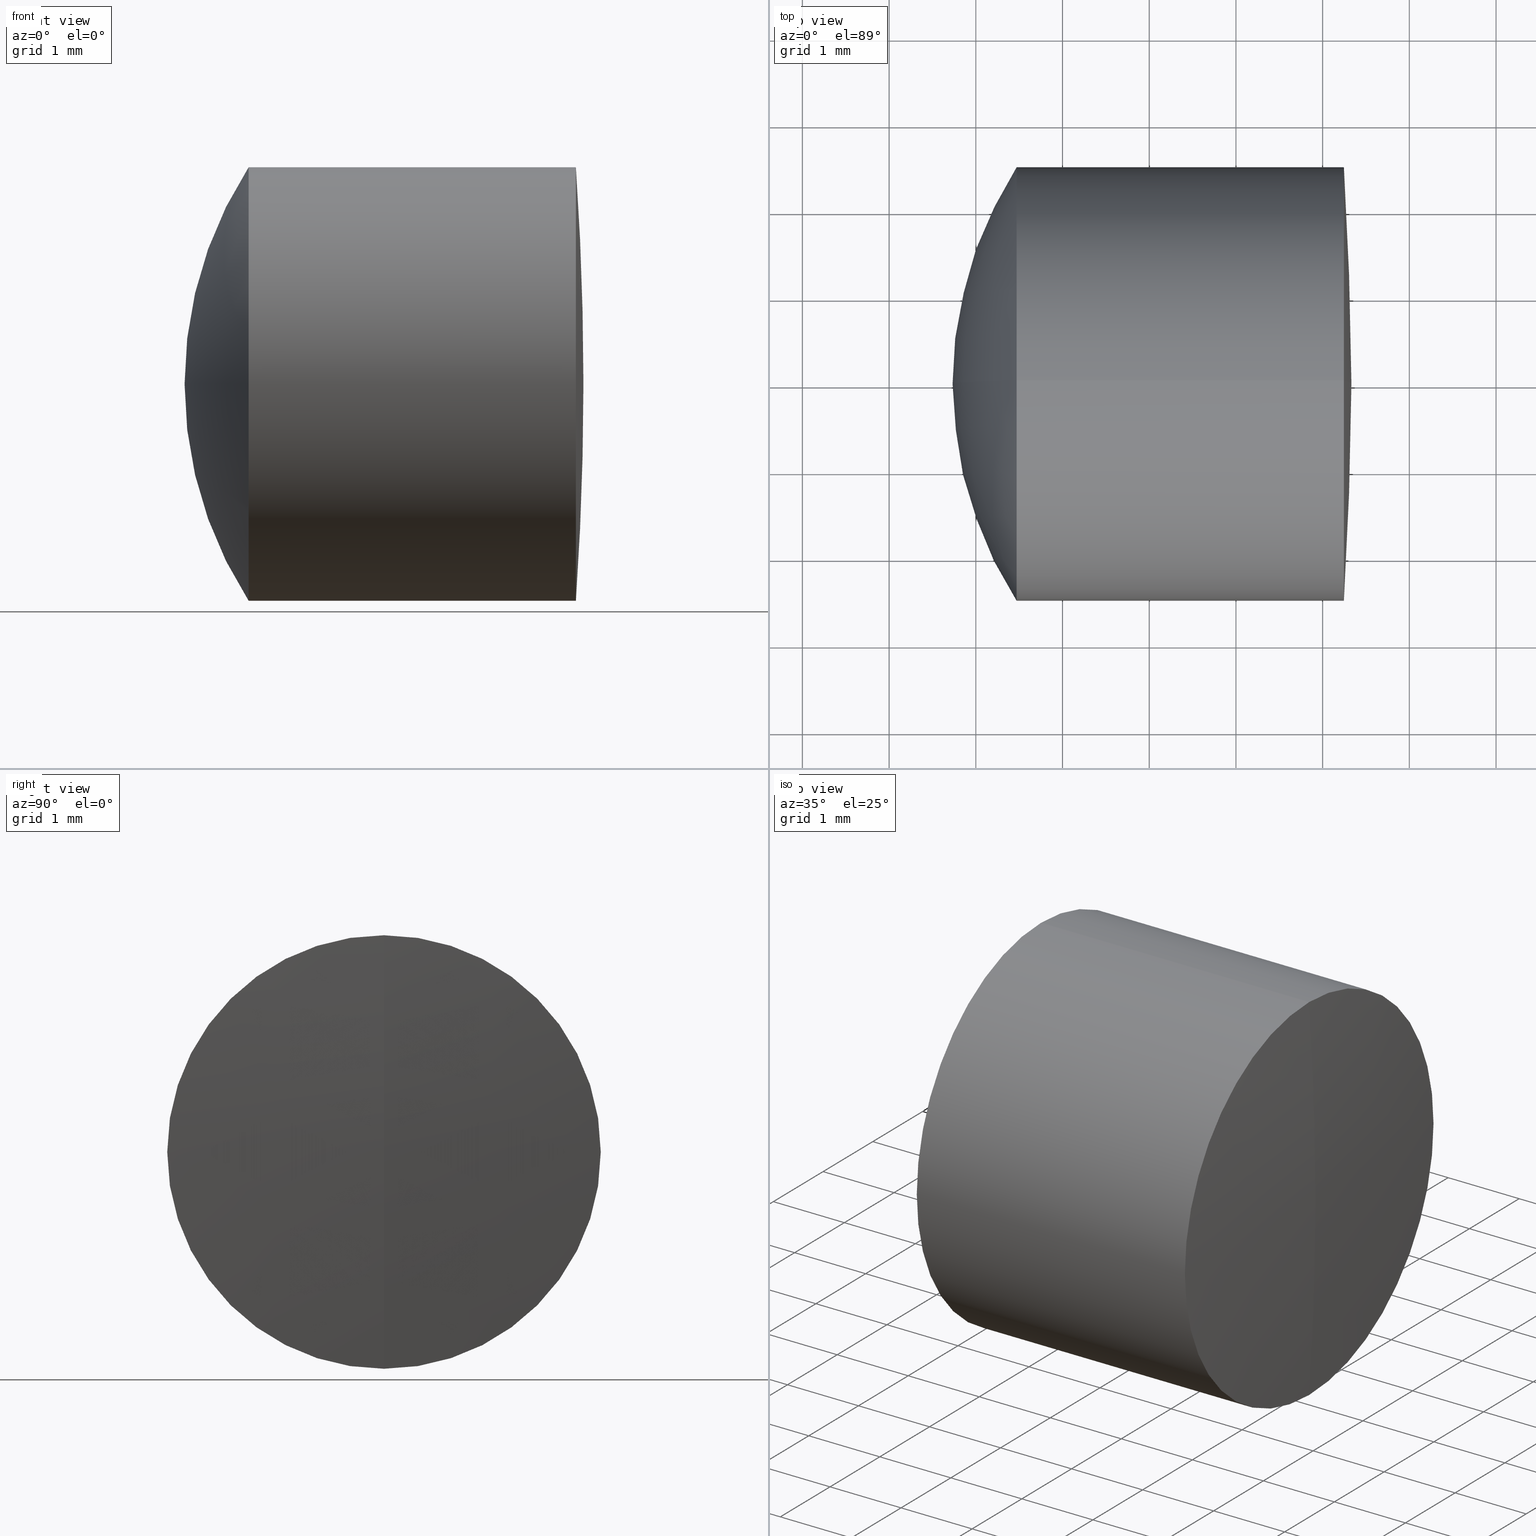
[diagram: canonical four-view strip — front | top / right | iso, engineering-drawing reading convention]
A machine part, canonical four-view strip (front | top / right | iso — engineering-drawing reading convention). The complete STEP part file that produces these views, byte-faithful:
ISO-10303-21;
HEADER;
FILE_DESCRIPTION (( 'STEP AP214' ),
    '1' );
FILE_NAME ('145100.STEP',
    '2019-05-28T05:48:34',
    ( 'user' ),
    ( '΢���й�' ),
    'SwSTEP 2.0',
    'SolidWorks 2016',
    '' );
FILE_SCHEMA (( 'AUTOMOTIVE_DESIGN' ));
ENDSEC;

DATA;
#1 = ORIENTED_EDGE ( 'NONE', *, *, #313, .T. ) ;
#2 = DIRECTION ( 'NONE',  ( 0.0000000000000000000, -1.000000000000000000, 0.0000000000000000000 ) ) ;
#3 = CARTESIAN_POINT ( 'NONE',  ( 261.3321490580823900, 0.0000000000000000000, 2.204364238465235800E-015 ) ) ;
#4 = DIRECTION ( 'NONE',  ( 0.0000000000000000000, 0.0000000000000000000, 1.000000000000000000 ) ) ;
#5 = DIRECTION ( 'NONE',  ( 0.0000000000000000000, 1.000000000000000000, 0.0000000000000000000 ) ) ;
#6 = MECHANICAL_DESIGN_GEOMETRIC_PRESENTATION_REPRESENTATION (  '', ( #104 ), #230 ) ;
#7 = DIRECTION ( 'NONE',  ( -1.000000000000000000, -0.0000000000000000000, -0.0000000000000000000 ) ) ;
#8 = SPHERICAL_SURFACE ( 'NONE', #24, 3.900000000000011000 ) ;
#9 = DIRECTION ( 'NONE',  ( 0.0000000000000000000, 0.0000000000000000000, 1.000000000000000000 ) ) ;
#10 = PRODUCT_CONTEXT ( 'NONE', #265, 'mechanical' ) ;
#11 = CARTESIAN_POINT ( 'NONE',  ( 258.6254749675014800, 0.0000000000000000000, 2.500000000000030200 ) ) ;
#12 = SPHERICAL_SURFACE ( 'NONE', #257, 3.900000000000012800 ) ;
#13 = ADVANCED_FACE ( 'NONE', ( #20 ), #307, .T. ) ;
#14 = DIRECTION ( 'NONE',  ( 0.0000000000000000000, 0.0000000000000000000, -1.000000000000000000 ) ) ;
#15 = FACE_OUTER_BOUND ( 'NONE', #239, .T. ) ;
#16 = ORIENTED_EDGE ( 'NONE', *, *, #299, .F. ) ;
#17 = ADVANCED_BREP_SHAPE_REPRESENTATION ( '145100', ( #115, #280, #107 ), #308 ) ;
#18 = AXIS2_PLACEMENT_3D ( 'NONE', #38, #65, #4 ) ;
#19 = DIRECTION ( 'NONE',  ( 0.0000000000000000000, 0.0000000000000000000, 1.000000000000000000 ) ) ;
#20 = FACE_OUTER_BOUND ( 'NONE', #228, .T. ) ;
#21 = CARTESIAN_POINT ( 'NONE',  ( 225.3321490580823900, 0.0000000000000000000, 0.0000000000000000000 ) ) ;
#22 = DIRECTION ( 'NONE',  ( 0.0000000000000000000, -1.000000000000000000, 0.0000000000000000000 ) ) ;
#23 = EDGE_CURVE ( 'NONE', #256, #25, #86, .T. ) ;
#24 = AXIS2_PLACEMENT_3D ( 'NONE', #144, #126, #305 ) ;
#25 = VERTEX_POINT ( 'NONE', #278 ) ;
#26 = ORIENTED_EDGE ( 'NONE', *, *, #88, .T. ) ;
#27 =( LENGTH_UNIT ( ) NAMED_UNIT ( * ) SI_UNIT ( .MILLI., .METRE. ) );
#28 = COLOUR_RGB ( '',1.000000000000000000, 1.000000000000000000, 1.000000000000000000 ) ;
#29 = AXIS2_PLACEMENT_3D ( 'NONE', #253, #333, #229 ) ;
#30 = CIRCLE ( 'NONE', #247, 2.500000000000030200 ) ;
#31 = ORIENTED_EDGE ( 'NONE', *, *, #170, .F. ) ;
#32 = CARTESIAN_POINT ( 'NONE',  ( 257.4708021428207900, 0.0000000000000000000, -2.500000000000000400 ) ) ;
#33 = ORIENTED_EDGE ( 'NONE', *, *, #154, .T. ) ;
#34 = EDGE_CURVE ( 'NONE', #108, #25, #139, .T. ) ;
#35 = PRESENTATION_STYLE_ASSIGNMENT (( #184 ) ) ;
#36 = CARTESIAN_POINT ( 'NONE',  ( 258.6254749675014800, 0.0000000000000000000, 0.0000000000000000000 ) ) ;
#37 = DIRECTION ( 'NONE',  ( 0.0000000000000000000, 1.000000000000000000, 0.0000000000000000000 ) ) ;
#38 = CARTESIAN_POINT ( 'NONE',  ( 124.5233095260452400, 0.0000000000000000000, 0.0000000000000000000 ) ) ;
#39 = AXIS2_PLACEMENT_3D ( 'NONE', #118, #252, #233 ) ;
#40 = CIRCLE ( 'NONE', #227, 36.00000000000000700 ) ;
#41 = SURFACE_STYLE_FILL_AREA ( #189 ) ;
#42 =( NAMED_UNIT ( * ) SI_UNIT ( $, .STERADIAN. ) SOLID_ANGLE_UNIT ( ) );
#43 = CARTESIAN_POINT ( 'NONE',  ( 261.2452385937934300, 0.0000000000000000000, 2.500000000000030200 ) ) ;
#44 = EDGE_CURVE ( 'NONE', #159, #163, #30, .T. ) ;
#45 = CARTESIAN_POINT ( 'NONE',  ( 255.6321490580823500, 0.0000000000000000000, 0.0000000000000000000 ) ) ;
#46 = ORIENTED_EDGE ( 'NONE', *, *, #142, .F. ) ;
#47 = ORIENTED_EDGE ( 'NONE', *, *, #76, .T. ) ;
#48 = CARTESIAN_POINT ( 'NONE',  ( 259.5321490580823800, 0.0000000000000000000, 2.388061258337345500E-016 ) ) ;
#49 = ADVANCED_FACE ( 'NONE', ( #186 ), #135, .T. ) ;
#50 = AXIS2_PLACEMENT_3D ( 'NONE', #310, #300, #283 ) ;
#51 = CARTESIAN_POINT ( 'NONE',  ( 255.6321490580823500, 0.0000000000000000000, 0.0000000000000000000 ) ) ;
#52 = APPLICATION_PROTOCOL_DEFINITION ( 'draft international standard', 'automotive_design', 1998, #265 ) ;
#53 = DIRECTION ( 'NONE',  ( -1.000000000000000000, -0.0000000000000000000, -0.0000000000000000000 ) ) ;
#54 = ADVANCED_FACE ( 'NONE', ( #336 ), #341, .F. ) ;
#55 = CARTESIAN_POINT ( 'NONE',  ( 259.5321490580823800, 0.0000000000000000000, 2.388061258337346500E-016 ) ) ;
#56 = AXIS2_PLACEMENT_3D ( 'NONE', #242, #240, #258 ) ;
#57 = PRODUCT ( '145100', '145100', '', ( #10 ) ) ;
#58 = ORIENTED_EDGE ( 'NONE', *, *, #299, .T. ) ;
#59 = MECHANICAL_DESIGN_GEOMETRIC_PRESENTATION_REPRESENTATION (  '', ( #238 ), #190 ) ;
#60 = CARTESIAN_POINT ( 'NONE',  ( 225.3321490580823900, 0.0000000000000000000, 0.0000000000000000000 ) ) ;
#61 = CARTESIAN_POINT ( 'NONE',  ( 124.5233095260452400, 3.061616997868383100E-016, -2.500000000000000000 ) ) ;
#62 = CARTESIAN_POINT ( 'NONE',  ( -0.5519199926577972300, 0.0000000000000000000, 2.500000000000030200 ) ) ;
#63 = ORIENTED_EDGE ( 'NONE', *, *, #98, .F. ) ;
#64 = CIRCLE ( 'NONE', #221, 2.500000000000030200 ) ;
#65 = DIRECTION ( 'NONE',  ( -1.000000000000000000, -0.0000000000000000000, -0.0000000000000000000 ) ) ;
#66 = DIRECTION ( 'NONE',  ( -1.000000000000000000, -0.0000000000000000000, -0.0000000000000000000 ) ) ;
#67 = EDGE_LOOP ( 'NONE', ( #127, #58, #273 ) ) ;
#68 = CARTESIAN_POINT ( 'NONE',  ( 0.0000000000000000000, 0.0000000000000000000, 0.0000000000000000000 ) ) ;
#69 = DIRECTION ( 'NONE',  ( -0.0000000000000000000, -1.000000000000000000, -0.0000000000000000000 ) ) ;
#70 = UNCERTAINTY_MEASURE_WITH_UNIT (LENGTH_MEASURE( 1.000000000000000100E-005 ), #169, 'distance_accuracy_value', 'NONE');
#71 = CARTESIAN_POINT ( 'NONE',  ( 261.2452385937934300, 3.061616997868419600E-016, -2.500000000000030200 ) ) ;
#72 = CARTESIAN_POINT ( 'NONE',  ( 257.4708021428207900, 0.0000000000000000000, 0.0000000000000000000 ) ) ;
#73 = ORIENTED_EDGE ( 'NONE', *, *, #334, .F. ) ;
#74 = ORIENTED_EDGE ( 'NONE', *, *, #34, .F. ) ;
#75 = CIRCLE ( 'NONE', #347, 36.00000000000000700 ) ;
#76 = EDGE_CURVE ( 'NONE', #326, #159, #40, .T. ) ;
#77 = ORIENTED_EDGE ( 'NONE', *, *, #34, .T. ) ;
#78 = PRODUCT_RELATED_PRODUCT_CATEGORY ( 'part', '', ( #57 ) ) ;
#79 = CIRCLE ( 'NONE', #245, 4.600000000000010300 ) ;
#80 = DIRECTION ( 'NONE',  ( 0.0000000000000000000, -1.224646799147353200E-016, 1.000000000000000000 ) ) ;
#81 = AXIS2_PLACEMENT_3D ( 'NONE', #21, #37, #331 ) ;
#82 = ORIENTED_EDGE ( 'NONE', *, *, #23, .T. ) ;
#83 = ADVANCED_FACE ( 'NONE', ( #15 ), #8, .F. ) ;
#84 = UNCERTAINTY_MEASURE_WITH_UNIT (LENGTH_MEASURE( 1.000000000000000100E-005 ), #277, 'distance_accuracy_value', 'NONE');
#85 = EDGE_CURVE ( 'NONE', #226, #312, #100, .T. ) ;
#86 = CIRCLE ( 'NONE', #29, 3.900000000000012800 ) ;
#87 = ORIENTED_EDGE ( 'NONE', *, *, #85, .T. ) ;
#88 = EDGE_CURVE ( 'NONE', #312, #174, #335, .T. ) ;
#89 = ORIENTED_EDGE ( 'NONE', *, *, #106, .T. ) ;
#90 = DIRECTION ( 'NONE',  ( 0.0000000000000000000, 0.0000000000000000000, -1.000000000000000000 ) ) ;
#91 = COLOUR_RGB ( '',1.000000000000000000, 1.000000000000000000, 1.000000000000000000 ) ;
#92 = DIRECTION ( 'NONE',  ( -1.000000000000000000, -0.0000000000000000000, -0.0000000000000000000 ) ) ;
#93 = DIRECTION ( 'NONE',  ( -0.0000000000000000000, 1.000000000000000000, 1.224646799147353200E-016 ) ) ;
#94 = ORIENTED_EDGE ( 'NONE', *, *, #250, .F. ) ;
#95 = DIRECTION ( 'NONE',  ( 0.0000000000000000000, 0.0000000000000000000, 1.000000000000000000 ) ) ;
#96 = FILL_AREA_STYLE ('',( #196 ) ) ;
#97 = DIRECTION ( 'NONE',  ( -1.000000000000000000, -0.0000000000000000000, -0.0000000000000000000 ) ) ;
#98 = EDGE_CURVE ( 'NONE', #208, #340, #149, .T. ) ;
#99 = AXIS2_PLACEMENT_3D ( 'NONE', #143, #123, #121 ) ;
#100 = CIRCLE ( 'NONE', #131, 3.900000000000011000 ) ;
#101 = LINE ( 'NONE', #306, #140 ) ;
#102 = CARTESIAN_POINT ( 'NONE',  ( -0.5519199926577972300, 3.061616997868419600E-016, -2.500000000000030200 ) ) ;
#103 = CYLINDRICAL_SURFACE ( 'NONE', #138, 2.500000000000030200 ) ;
#104 = STYLED_ITEM ( 'NONE', ( #35 ), #17 ) ;
#105 = ORIENTED_EDGE ( 'NONE', *, *, #85, .F. ) ;
#106 = EDGE_CURVE ( 'NONE', #340, #244, #79, .T. ) ;
#107 = AXIS2_PLACEMENT_3D ( 'NONE', #68, #232, #284 ) ;
#108 = VERTEX_POINT ( 'NONE', #175 ) ;
#109 = DIRECTION ( 'NONE',  ( 0.0000000000000000000, 0.0000000000000000000, 1.000000000000000000 ) ) ;
#110 = SURFACE_STYLE_USAGE ( .BOTH. , #298 ) ;
#111 = AXIS2_PLACEMENT_3D ( 'NONE', #262, #271, #90 ) ;
#112 = AXIS2_PLACEMENT_3D ( 'NONE', #60, #5, #285 ) ;
#113 = PRESENTATION_STYLE_ASSIGNMENT (( #110 ) ) ;
#114 = LINE ( 'NONE', #61, #345 ) ;
#115 = MANIFOLD_SOLID_BREP ( '��ת1', #281 ) ;
#116 = DIRECTION ( 'NONE',  ( 0.0000000000000000000, 0.0000000000000000000, 1.000000000000000000 ) ) ;
#117 = EDGE_LOOP ( 'NONE', ( #343, #173, #166 ) ) ;
#118 = CARTESIAN_POINT ( 'NONE',  ( 258.6254749675014800, 0.0000000000000000000, 0.0000000000000000000 ) ) ;
#119 = CARTESIAN_POINT ( 'NONE',  ( 261.3321490580823900, 0.0000000000000000000, 4.129147144605070300E-016 ) ) ;
#120 = ORIENTED_EDGE ( 'NONE', *, *, #98, .T. ) ;
#121 = DIRECTION ( 'NONE',  ( 0.0000000000000000000, 0.0000000000000000000, 1.000000000000000000 ) ) ;
#122 = CARTESIAN_POINT ( 'NONE',  ( 255.6321490580823500, 0.0000000000000000000, 0.0000000000000000000 ) ) ;
#123 = DIRECTION ( 'NONE',  ( -1.000000000000000000, -0.0000000000000000000, -0.0000000000000000000 ) ) ;
#124 = CARTESIAN_POINT ( 'NONE',  ( 225.3321490580823900, 0.0000000000000000000, 0.0000000000000000000 ) ) ;
#125 = CARTESIAN_POINT ( 'NONE',  ( 261.3321490580823900, 0.0000000000000000000, 4.129147144605070300E-016 ) ) ;
#126 = DIRECTION ( 'NONE',  ( 0.0000000000000000000, 1.000000000000000000, 0.0000000000000000000 ) ) ;
#127 = ORIENTED_EDGE ( 'NONE', *, *, #106, .F. ) ;
#128 = FILL_AREA_STYLE_COLOUR ( '', #224 ) ;
#129 = SPHERICAL_SURFACE ( 'NONE', #112, 36.00000000000000700 ) ;
#130 =( NAMED_UNIT ( * ) PLANE_ANGLE_UNIT ( ) SI_UNIT ( $, .RADIAN. ) );
#131 = AXIS2_PLACEMENT_3D ( 'NONE', #199, #249, #339 ) ;
#132 = DIRECTION ( 'NONE',  ( -1.000000000000000000, -0.0000000000000000000, -0.0000000000000000000 ) ) ;
#133 = DIRECTION ( 'NONE',  ( 0.0000000000000000000, 1.000000000000000000, 0.0000000000000000000 ) ) ;
#134 =( NAMED_UNIT ( * ) PLANE_ANGLE_UNIT ( ) SI_UNIT ( $, .RADIAN. ) );
#135 = SPHERICAL_SURFACE ( 'NONE', #111, 4.600000000000010300 ) ;
#136 = EDGE_CURVE ( 'NONE', #174, #312, #279, .T. ) ;
#137 = VECTOR ( 'NONE', #92, 1000.000000000000000 ) ;
#138 = AXIS2_PLACEMENT_3D ( 'NONE', #141, #66, #116 ) ;
#139 = CIRCLE ( 'NONE', #56, 2.499999999999999600 ) ;
#140 = VECTOR ( 'NONE', #311, 1000.000000000000000 ) ;
#141 = CARTESIAN_POINT ( 'NONE',  ( -0.5519199926577972300, 0.0000000000000000000, 0.0000000000000000000 ) ) ;
#142 = EDGE_CURVE ( 'NONE', #256, #108, #231, .T. ) ;
#143 = CARTESIAN_POINT ( 'NONE',  ( 258.6254749675014800, 0.0000000000000000000, 0.0000000000000000000 ) ) ;
#144 = CARTESIAN_POINT ( 'NONE',  ( 255.6321490580823500, 0.0000000000000000000, 0.0000000000000000000 ) ) ;
#145 = FACE_OUTER_BOUND ( 'NONE', #117, .T. ) ;
#146 = DIRECTION ( 'NONE',  ( -1.000000000000000000, -0.0000000000000000000, -0.0000000000000000000 ) ) ;
#147 = DIRECTION ( 'NONE',  ( 0.0000000000000000000, 0.0000000000000000000, 1.000000000000000000 ) ) ;
#148 = DIRECTION ( 'NONE',  ( 0.0000000000000000000, 0.0000000000000000000, 1.000000000000000000 ) ) ;
#149 = CIRCLE ( 'NONE', #165, 2.500000000000000400 ) ;
#150 = ORIENTED_EDGE ( 'NONE', *, *, #136, .T. ) ;
#151 =( NAMED_UNIT ( * ) PLANE_ANGLE_UNIT ( ) SI_UNIT ( $, .RADIAN. ) );
#152 = DIRECTION ( 'NONE',  ( 0.0000000000000000000, 0.0000000000000000000, 1.000000000000000000 ) ) ;
#153 =( NAMED_UNIT ( * ) PLANE_ANGLE_UNIT ( ) SI_UNIT ( $, .RADIAN. ) );
#154 = EDGE_CURVE ( 'NONE', #159, #312, #268, .T. ) ;
#155 = DIRECTION ( 'NONE',  ( 0.0000000000000000000, 0.0000000000000000000, 1.000000000000000000 ) ) ;
#156 = CARTESIAN_POINT ( 'NONE',  ( -0.5519199926577972300, 0.0000000000000000000, 0.0000000000000000000 ) ) ;
#157 = ADVANCED_FACE ( 'NONE', ( #296 ), #103, .T. ) ;
#158 =( LENGTH_UNIT ( ) NAMED_UNIT ( * ) SI_UNIT ( .MILLI., .METRE. ) );
#159 = VERTEX_POINT ( 'NONE', #71 ) ;
#160 = EDGE_CURVE ( 'NONE', #226, #174, #213, .T. ) ;
#161 = ORIENTED_EDGE ( 'NONE', *, *, #160, .T. ) ;
#162 = EDGE_LOOP ( 'NONE', ( #105, #161, #150 ) ) ;
#163 = VERTEX_POINT ( 'NONE', #43 ) ;
#164 = CIRCLE ( 'NONE', #317, 2.500000000000000400 ) ;
#165 = AXIS2_PLACEMENT_3D ( 'NONE', #182, #97, #95 ) ;
#166 = ORIENTED_EDGE ( 'NONE', *, *, #215, .F. ) ;
#167 =( NAMED_UNIT ( * ) SI_UNIT ( $, .STERADIAN. ) SOLID_ANGLE_UNIT ( ) );
#168 = CARTESIAN_POINT ( 'NONE',  ( 257.4708021428207900, -3.061616997868383100E-016, 2.500000000000000400 ) ) ;
#169 =( LENGTH_UNIT ( ) NAMED_UNIT ( * ) SI_UNIT ( .MILLI., .METRE. ) );
#170 = EDGE_CURVE ( 'NONE', #108, #208, #114, .T. ) ;
#171 = DIRECTION ( 'NONE',  ( -1.000000000000000000, -0.0000000000000000000, -0.0000000000000000000 ) ) ;
#172 = AXIS2_PLACEMENT_3D ( 'NONE', #36, #197, #109 ) ;
#173 = ORIENTED_EDGE ( 'NONE', *, *, #142, .T. ) ;
#174 = VERTEX_POINT ( 'NONE', #11 ) ;
#175 = CARTESIAN_POINT ( 'NONE',  ( 258.6254749675014800, 3.061616997868383100E-016, -2.499999999999999600 ) ) ;
#176 = AXIS2_PLACEMENT_3D ( 'NONE', #51, #22, #14 ) ;
#177 = SURFACE_SIDE_STYLE ('',( #194 ) ) ;
#178 = DIRECTION ( 'NONE',  ( -0.0000000000000000000, 1.000000000000000000, 1.224646799147353200E-016 ) ) ;
#179 = FILL_AREA_STYLE ('',( #128 ) ) ;
#180 = SURFACE_STYLE_USAGE ( .BOTH. , #177 ) ;
#181 = DIRECTION ( 'NONE',  ( -1.000000000000000000, -0.0000000000000000000, -0.0000000000000000000 ) ) ;
#182 = CARTESIAN_POINT ( 'NONE',  ( 257.4708021428207900, 0.0000000000000000000, 0.0000000000000000000 ) ) ;
#183 = SPHERICAL_SURFACE ( 'NONE', #187, 3.900000000000012800 ) ;
#184 = SURFACE_STYLE_USAGE ( .BOTH. , #301 ) ;
#185 = AXIS2_PLACEMENT_3D ( 'NONE', #45, #260, #19 ) ;
#186 = FACE_OUTER_BOUND ( 'NONE', #269, .T. ) ;
#187 = AXIS2_PLACEMENT_3D ( 'NONE', #272, #218, #152 ) ;
#188 = LINE ( 'NONE', #62, #324 ) ;
#189 = FILL_AREA_STYLE ('',( #211 ) ) ;
#190 =( GEOMETRIC_REPRESENTATION_CONTEXT ( 3 ) GLOBAL_UNCERTAINTY_ASSIGNED_CONTEXT ( ( #304 ) ) GLOBAL_UNIT_ASSIGNED_CONTEXT ( ( #27, #134, #255 ) ) REPRESENTATION_CONTEXT ( 'NONE', 'WORKASPACE' ) );
#191 = FACE_OUTER_BOUND ( 'NONE', #321, .T. ) ;
#192 = DIRECTION ( 'NONE',  ( 0.0000000000000000000, -1.224646799147353000E-016, 1.000000000000000000 ) ) ;
#193 = PRODUCT_DEFINITION_FORMATION_WITH_SPECIFIED_SOURCE ( '�κ�', '', #57, .NOT_KNOWN. ) ;
#194 = SURFACE_STYLE_FILL_AREA ( #179 ) ;
#195 = ORIENTED_EDGE ( 'NONE', *, *, #170, .T. ) ;
#196 = FILL_AREA_STYLE_COLOUR ( '', #91 ) ;
#197 = DIRECTION ( 'NONE',  ( -1.000000000000000000, -0.0000000000000000000, -0.0000000000000000000 ) ) ;
#198 = FACE_OUTER_BOUND ( 'NONE', #302, .T. ) ;
#199 = CARTESIAN_POINT ( 'NONE',  ( 255.6321490580823500, 0.0000000000000000000, 0.0000000000000000000 ) ) ;
#200 = APPLICATION_CONTEXT ( 'automotive_design' ) ;
#201 = DIRECTION ( 'NONE',  ( 0.0000000000000000000, 1.000000000000000000, -0.0000000000000000000 ) ) ;
#202 = FACE_OUTER_BOUND ( 'NONE', #289, .T. ) ;
#203 = CYLINDRICAL_SURFACE ( 'NONE', #225, 2.500000000000030200 ) ;
#204 = PRESENTATION_LAYER_ASSIGNMENT (  '', '', ( #238 ) ) ;
#205 = DIRECTION ( 'NONE',  ( 0.0000000000000000000, 1.224646799147353200E-016, -1.000000000000000000 ) ) ;
#206 = CARTESIAN_POINT ( 'NONE',  ( 225.3321490580823900, 0.0000000000000000000, 0.0000000000000000000 ) ) ;
#207 = EDGE_LOOP ( 'NONE', ( #234, #274, #270, #291 ) ) ;
#208 = VERTEX_POINT ( 'NONE', #32 ) ;
#209 = CARTESIAN_POINT ( 'NONE',  ( 261.3321490580823900, 0.0000000000000000000, 4.129147144605070300E-016 ) ) ;
#210 = FACE_OUTER_BOUND ( 'NONE', #337, .T. ) ;
#211 = FILL_AREA_STYLE_COLOUR ( '', #28 ) ;
#212 = AXIS2_PLACEMENT_3D ( 'NONE', #125, #69, #309 ) ;
#213 = CIRCLE ( 'NONE', #176, 3.900000000000011000 ) ;
#214 = SURFACE_STYLE_FILL_AREA ( #96 ) ;
#215 = EDGE_CURVE ( 'NONE', #25, #108, #292, .T. ) ;
#216 = ADVANCED_FACE ( 'NONE', ( #202 ), #129, .T. ) ;
#217 = DIRECTION ( 'NONE',  ( 0.0000000000000000000, -1.000000000000000000, -1.224646799147353200E-016 ) ) ;
#218 = DIRECTION ( 'NONE',  ( 0.0000000000000000000, 1.000000000000000000, 0.0000000000000000000 ) ) ;
#219 = EDGE_CURVE ( 'NONE', #163, #174, #188, .T. ) ;
#220 = ADVANCED_FACE ( 'NONE', ( #198 ), #342, .T. ) ;
#221 = AXIS2_PLACEMENT_3D ( 'NONE', #316, #181, #303 ) ;
#222 = ORIENTED_EDGE ( 'NONE', *, *, #219, .F. ) ;
#223 = ADVANCED_FACE ( 'NONE', ( #145 ), #183, .T. ) ;
#224 = COLOUR_RGB ( '',1.000000000000000000, 1.000000000000000000, 1.000000000000000000 ) ;
#225 = AXIS2_PLACEMENT_3D ( 'NONE', #156, #53, #148 ) ;
#226 = VERTEX_POINT ( 'NONE', #48 ) ;
#227 = AXIS2_PLACEMENT_3D ( 'NONE', #206, #178, #192 ) ;
#228 = EDGE_LOOP ( 'NONE', ( #31, #77, #323, #63 ) ) ;
#229 = DIRECTION ( 'NONE',  ( 0.0000000000000000000, 0.0000000000000000000, -1.000000000000000000 ) ) ;
#230 =( GEOMETRIC_REPRESENTATION_CONTEXT ( 3 ) GLOBAL_UNCERTAINTY_ASSIGNED_CONTEXT ( ( #70 ) ) GLOBAL_UNIT_ASSIGNED_CONTEXT ( ( #169, #151, #254 ) ) REPRESENTATION_CONTEXT ( 'NONE', 'WORKASPACE' ) );
#231 = CIRCLE ( 'NONE', #318, 3.900000000000012800 ) ;
#232 = DIRECTION ( 'NONE',  ( 0.0000000000000000000, 0.0000000000000000000, 1.000000000000000000 ) ) ;
#233 = DIRECTION ( 'NONE',  ( 0.0000000000000000000, 0.0000000000000000000, 1.000000000000000000 ) ) ;
#234 = ORIENTED_EDGE ( 'NONE', *, *, #154, .F. ) ;
#235 = DIRECTION ( 'NONE',  ( 0.0000000000000000000, 0.0000000000000000000, -1.000000000000000000 ) ) ;
#236 = ORIENTED_EDGE ( 'NONE', *, *, #287, .F. ) ;
#237 = FACE_OUTER_BOUND ( 'NONE', #67, .T. ) ;
#238 = STYLED_ITEM ( 'NONE', ( #113 ), #280 ) ;
#239 = EDGE_LOOP ( 'NONE', ( #261, #87, #26 ) ) ;
#240 = DIRECTION ( 'NONE',  ( -1.000000000000000000, -0.0000000000000000000, -0.0000000000000000000 ) ) ;
#241 = ADVANCED_FACE ( 'NONE', ( #295 ), #203, .T. ) ;
#242 = CARTESIAN_POINT ( 'NONE',  ( 258.6254749675014800, 0.0000000000000000000, 0.0000000000000000000 ) ) ;
#243 = APPLICATION_PROTOCOL_DEFINITION ( 'draft international standard', 'automotive_design', 1998, #200 ) ;
#244 = VERTEX_POINT ( 'NONE', #322 ) ;
#245 = AXIS2_PLACEMENT_3D ( 'NONE', #209, #217, #205 ) ;
#246 = PRESENTATION_LAYER_ASSIGNMENT (  '', '', ( #263 ) ) ;
#247 = AXIS2_PLACEMENT_3D ( 'NONE', #264, #171, #327 ) ;
#248 = PRESENTATION_STYLE_ASSIGNMENT (( #180 ) ) ;
#249 = DIRECTION ( 'NONE',  ( -0.0000000000000000000, 1.000000000000000000, 1.224646799147353200E-016 ) ) ;
#250 = EDGE_CURVE ( 'NONE', #326, #163, #75, .T. ) ;
#251 = PRODUCT_DEFINITION ( 'δ֪', '', #193, #325 ) ;
#252 = DIRECTION ( 'NONE',  ( -1.000000000000000000, -0.0000000000000000000, -0.0000000000000000000 ) ) ;
#253 = CARTESIAN_POINT ( 'NONE',  ( 255.6321490580823500, 0.0000000000000000000, 0.0000000000000000000 ) ) ;
#254 =( NAMED_UNIT ( * ) SI_UNIT ( $, .STERADIAN. ) SOLID_ANGLE_UNIT ( ) );
#255 =( NAMED_UNIT ( * ) SI_UNIT ( $, .STERADIAN. ) SOLID_ANGLE_UNIT ( ) );
#256 = VERTEX_POINT ( 'NONE', #55 ) ;
#257 = AXIS2_PLACEMENT_3D ( 'NONE', #122, #133, #9 ) ;
#258 = DIRECTION ( 'NONE',  ( 0.0000000000000000000, 0.0000000000000000000, 1.000000000000000000 ) ) ;
#259 = CARTESIAN_POINT ( 'NONE',  ( 255.6321490580823500, 0.0000000000000000000, 0.0000000000000000000 ) ) ;
#260 = DIRECTION ( 'NONE',  ( 0.0000000000000000000, 1.000000000000000000, 0.0000000000000000000 ) ) ;
#261 = ORIENTED_EDGE ( 'NONE', *, *, #160, .F. ) ;
#262 = CARTESIAN_POINT ( 'NONE',  ( 261.3321490580823900, 0.0000000000000000000, 4.129147144605070300E-016 ) ) ;
#263 = STYLED_ITEM ( 'NONE', ( #248 ), #115 ) ;
#264 = CARTESIAN_POINT ( 'NONE',  ( 261.2452385937934300, 0.0000000000000000000, 0.0000000000000000000 ) ) ;
#265 = APPLICATION_CONTEXT ( 'automotive_design' ) ;
#266 = ADVANCED_FACE ( 'NONE', ( #191 ), #328, .T. ) ;
#267 = CARTESIAN_POINT ( 'NONE',  ( 258.6254749675014800, 3.061616997868420100E-016, -2.500000000000030200 ) ) ;
#268 = LINE ( 'NONE', #102, #137 ) ;
#269 = EDGE_LOOP ( 'NONE', ( #120, #89, #73 ) ) ;
#270 = ORIENTED_EDGE ( 'NONE', *, *, #219, .T. ) ;
#271 = DIRECTION ( 'NONE',  ( -0.0000000000000000000, -1.000000000000000000, -0.0000000000000000000 ) ) ;
#272 = CARTESIAN_POINT ( 'NONE',  ( 255.6321490580823500, 0.0000000000000000000, 0.0000000000000000000 ) ) ;
#273 = ORIENTED_EDGE ( 'NONE', *, *, #334, .T. ) ;
#274 = ORIENTED_EDGE ( 'NONE', *, *, #44, .T. ) ;
#275 =( GEOMETRIC_REPRESENTATION_CONTEXT ( 3 ) GLOBAL_UNCERTAINTY_ASSIGNED_CONTEXT ( ( #332 ) ) GLOBAL_UNIT_ASSIGNED_CONTEXT ( ( #158, #153, #167 ) ) REPRESENTATION_CONTEXT ( 'NONE', 'WORKASPACE' ) );
#276 = CIRCLE ( 'NONE', #338, 4.600000000000010300 ) ;
#277 =( LENGTH_UNIT ( ) NAMED_UNIT ( * ) SI_UNIT ( .MILLI., .METRE. ) );
#278 = CARTESIAN_POINT ( 'NONE',  ( 258.6254749675014800, 0.0000000000000000000, 2.499999999999999600 ) ) ;
#279 = CIRCLE ( 'NONE', #99, 2.500000000000030200 ) ;
#280 = MANIFOLD_SOLID_BREP ( '��ת3', #346 ) ;
#281 = CLOSED_SHELL ( 'NONE', ( #223, #266, #49, #319, #13, #290 ) ) ;
#282 = PRESENTATION_LAYER_ASSIGNMENT (  '', '', ( #104 ) ) ;
#283 = DIRECTION ( 'NONE',  ( 0.0000000000000000000, 0.0000000000000000000, 1.000000000000000000 ) ) ;
#284 = DIRECTION ( 'NONE',  ( 1.000000000000000000, 0.0000000000000000000, 0.0000000000000000000 ) ) ;
#285 = DIRECTION ( 'NONE',  ( 0.0000000000000000000, 0.0000000000000000000, 1.000000000000000000 ) ) ;
#286 = ORIENTED_EDGE ( 'NONE', *, *, #76, .F. ) ;
#287 = EDGE_CURVE ( 'NONE', #25, #340, #101, .T. ) ;
#288 = SHAPE_DEFINITION_REPRESENTATION ( #329, #17 ) ;
#289 = EDGE_LOOP ( 'NONE', ( #94, #47, #330 ) ) ;
#290 = ADVANCED_FACE ( 'NONE', ( #210 ), #12, .T. ) ;
#291 = ORIENTED_EDGE ( 'NONE', *, *, #88, .F. ) ;
#292 = CIRCLE ( 'NONE', #39, 2.499999999999999600 ) ;
#293 = EDGE_LOOP ( 'NONE', ( #1, #33, #294, #222 ) ) ;
#294 = ORIENTED_EDGE ( 'NONE', *, *, #136, .F. ) ;
#295 = FACE_OUTER_BOUND ( 'NONE', #207, .T. ) ;
#296 = FACE_OUTER_BOUND ( 'NONE', #293, .T. ) ;
#297 = MECHANICAL_DESIGN_GEOMETRIC_PRESENTATION_REPRESENTATION (  '', ( #263 ), #275 ) ;
#298 = SURFACE_SIDE_STYLE ('',( #214 ) ) ;
#299 = EDGE_CURVE ( 'NONE', #340, #208, #164, .T. ) ;
#300 = DIRECTION ( 'NONE',  ( -1.000000000000000000, -0.0000000000000000000, -0.0000000000000000000 ) ) ;
#301 = SURFACE_SIDE_STYLE ('',( #41 ) ) ;
#302 = EDGE_LOOP ( 'NONE', ( #286, #314, #344 ) ) ;
#303 = DIRECTION ( 'NONE',  ( 0.0000000000000000000, 0.0000000000000000000, 1.000000000000000000 ) ) ;
#304 = UNCERTAINTY_MEASURE_WITH_UNIT (LENGTH_MEASURE( 1.000000000000000100E-005 ), #27, 'distance_accuracy_value', 'NONE');
#305 = DIRECTION ( 'NONE',  ( 0.0000000000000000000, 0.0000000000000000000, 1.000000000000000000 ) ) ;
#306 = CARTESIAN_POINT ( 'NONE',  ( 124.5233095260452400, 0.0000000000000000000, 2.500000000000000000 ) ) ;
#307 = CYLINDRICAL_SURFACE ( 'NONE', #50, 2.500000000000000000 ) ;
#308 =( GEOMETRIC_REPRESENTATION_CONTEXT ( 3 ) GLOBAL_UNCERTAINTY_ASSIGNED_CONTEXT ( ( #84 ) ) GLOBAL_UNIT_ASSIGNED_CONTEXT ( ( #277, #130, #42 ) ) REPRESENTATION_CONTEXT ( 'NONE', 'WORKASPACE' ) );
#309 = DIRECTION ( 'NONE',  ( 0.0000000000000000000, 0.0000000000000000000, -1.000000000000000000 ) ) ;
#310 = CARTESIAN_POINT ( 'NONE',  ( 124.5233095260452400, 0.0000000000000000000, 0.0000000000000000000 ) ) ;
#311 = DIRECTION ( 'NONE',  ( -1.000000000000000000, -0.0000000000000000000, -0.0000000000000000000 ) ) ;
#312 = VERTEX_POINT ( 'NONE', #267 ) ;
#313 = EDGE_CURVE ( 'NONE', #163, #159, #64, .T. ) ;
#314 = ORIENTED_EDGE ( 'NONE', *, *, #250, .T. ) ;
#315 = SPHERICAL_SURFACE ( 'NONE', #212, 4.600000000000010300 ) ;
#316 = CARTESIAN_POINT ( 'NONE',  ( 261.2452385937934300, 0.0000000000000000000, 0.0000000000000000000 ) ) ;
#317 = AXIS2_PLACEMENT_3D ( 'NONE', #72, #132, #155 ) ;
#318 = AXIS2_PLACEMENT_3D ( 'NONE', #259, #93, #80 ) ;
#319 = ADVANCED_FACE ( 'NONE', ( #237 ), #315, .T. ) ;
#320 = ORIENTED_EDGE ( 'NONE', *, *, #215, .T. ) ;
#321 = EDGE_LOOP ( 'NONE', ( #320, #195, #16, #236 ) ) ;
#322 = CARTESIAN_POINT ( 'NONE',  ( 256.7321490580823700, 0.0000000000000000000, 1.312459506566151800E-016 ) ) ;
#323 = ORIENTED_EDGE ( 'NONE', *, *, #287, .T. ) ;
#324 = VECTOR ( 'NONE', #146, 1000.000000000000000 ) ;
#325 = PRODUCT_DEFINITION_CONTEXT ( 'detailed design', #200, 'design' ) ;
#326 = VERTEX_POINT ( 'NONE', #3 ) ;
#327 = DIRECTION ( 'NONE',  ( 0.0000000000000000000, 0.0000000000000000000, 1.000000000000000000 ) ) ;
#328 = CYLINDRICAL_SURFACE ( 'NONE', #18, 2.500000000000000000 ) ;
#329 = PRODUCT_DEFINITION_SHAPE ( 'NONE', 'NONE',  #251 ) ;
#330 = ORIENTED_EDGE ( 'NONE', *, *, #313, .F. ) ;
#331 = DIRECTION ( 'NONE',  ( 0.0000000000000000000, 0.0000000000000000000, 1.000000000000000000 ) ) ;
#332 = UNCERTAINTY_MEASURE_WITH_UNIT (LENGTH_MEASURE( 1.000000000000000100E-005 ), #158, 'distance_accuracy_value', 'NONE');
#333 = DIRECTION ( 'NONE',  ( 0.0000000000000000000, -1.000000000000000000, 0.0000000000000000000 ) ) ;
#334 = EDGE_CURVE ( 'NONE', #208, #244, #276, .T. ) ;
#335 = CIRCLE ( 'NONE', #172, 2.500000000000030200 ) ;
#336 = FACE_OUTER_BOUND ( 'NONE', #162, .T. ) ;
#337 = EDGE_LOOP ( 'NONE', ( #46, #82, #74 ) ) ;
#338 = AXIS2_PLACEMENT_3D ( 'NONE', #119, #201, #147 ) ;
#339 = DIRECTION ( 'NONE',  ( 0.0000000000000000000, -1.224646799147353200E-016, 1.000000000000000000 ) ) ;
#340 = VERTEX_POINT ( 'NONE', #168 ) ;
#341 = SPHERICAL_SURFACE ( 'NONE', #185, 3.900000000000011000 ) ;
#342 = SPHERICAL_SURFACE ( 'NONE', #81, 36.00000000000000700 ) ;
#343 = ORIENTED_EDGE ( 'NONE', *, *, #23, .F. ) ;
#344 = ORIENTED_EDGE ( 'NONE', *, *, #44, .F. ) ;
#345 = VECTOR ( 'NONE', #7, 1000.000000000000000 ) ;
#346 = CLOSED_SHELL ( 'NONE', ( #216, #157, #83, #54, #241, #220 ) ) ;
#347 = AXIS2_PLACEMENT_3D ( 'NONE', #124, #2, #235 ) ;
ENDSEC;
END-ISO-10303-21;
